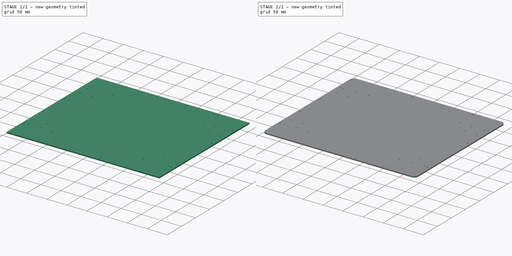
[diagram: build sequence overview — one tinted view per stage of 2, left to right]
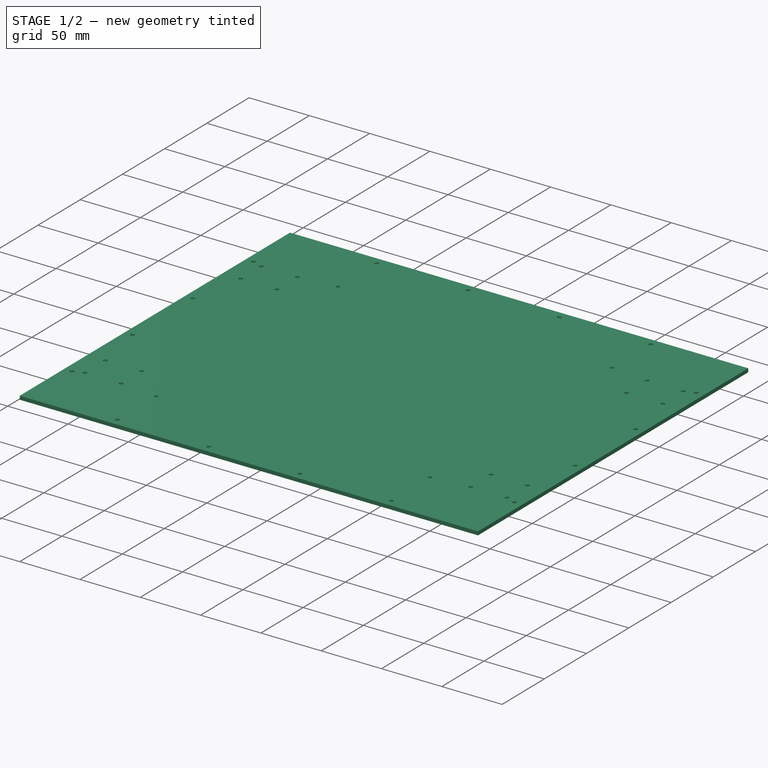
[diagram: stage 1 of 2 — iso view after this stage's code; geometry added in this stage tinted green]
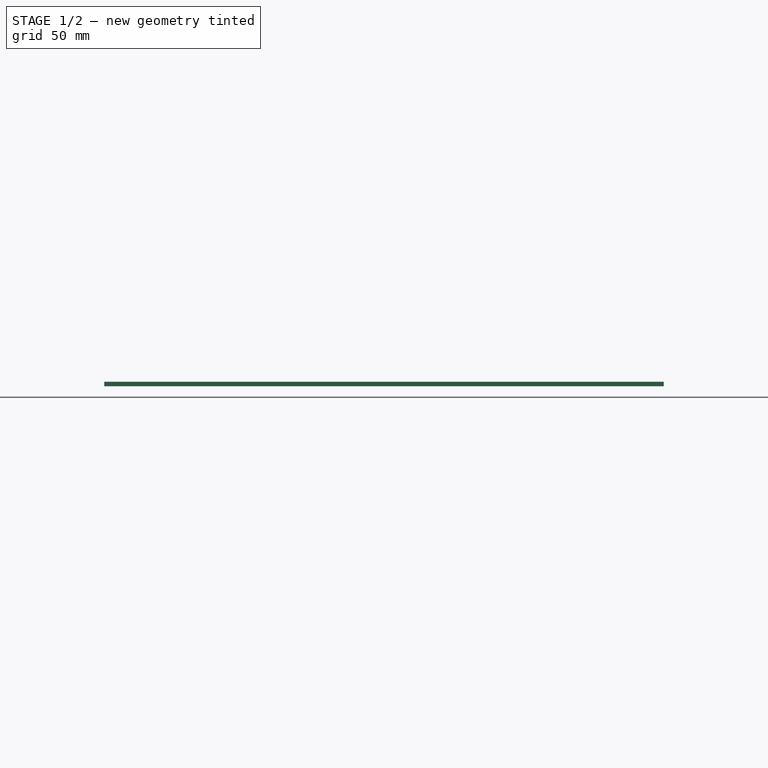
[diagram: stage 1 of 2 — front view after this stage's code; geometry added in this stage tinted green]
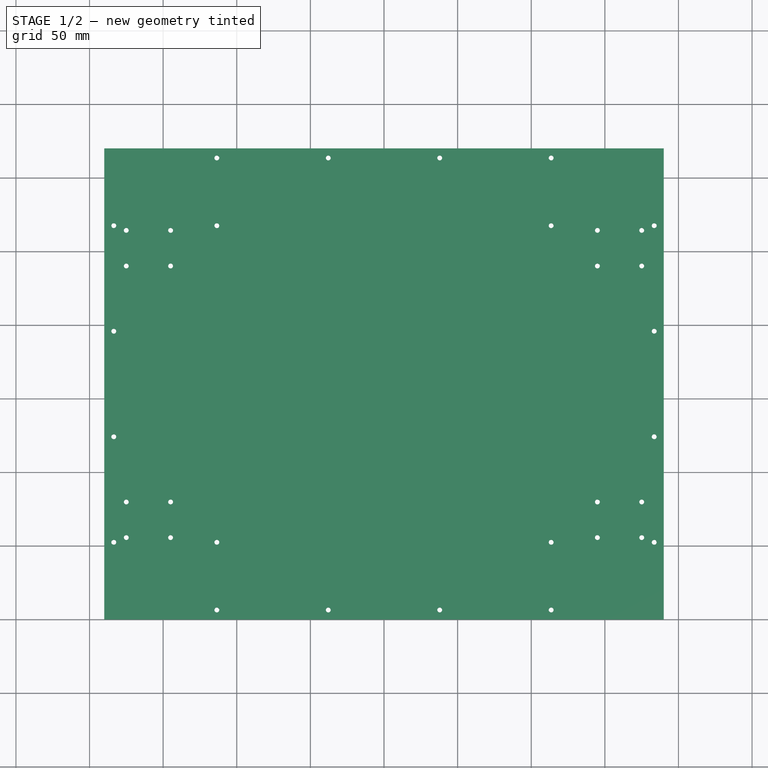
[diagram: stage 1 of 2 — top view after this stage's code; geometry added in this stage tinted green]
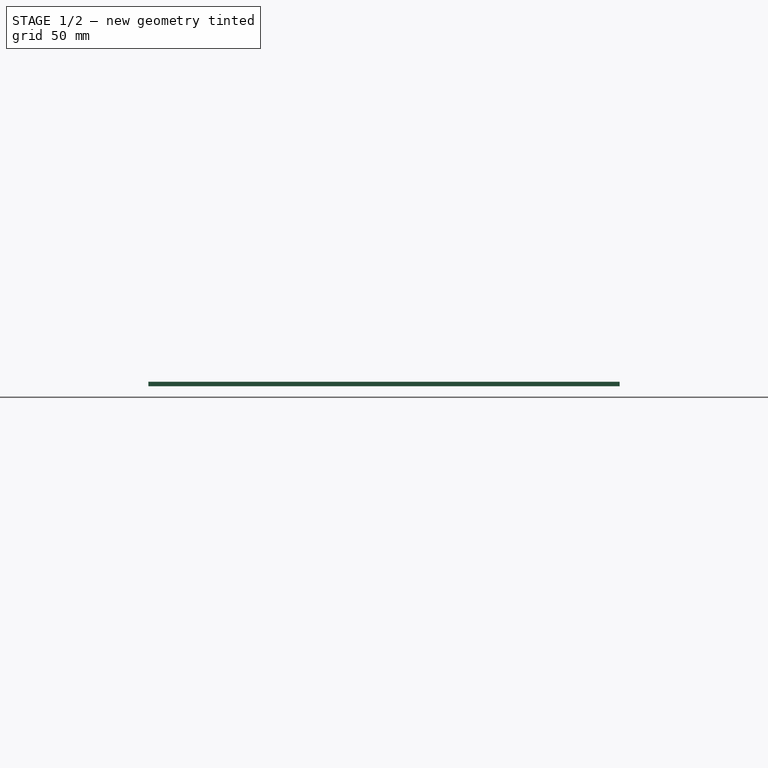
[diagram: stage 1 of 2 — right view after this stage's code; geometry added in this stage tinted green]
FCSTD DOCUMENT  (FreeCAD 1.0R39109 (Git))
Label: base_arriba
License: All rights reserved
LicenseURL: https://en.wikipedia.org/wiki/All_rights_reserved
objects: Sketcher::SketchObject×2, Part::Feature×1, PartDesign::FeatureBase×1, PartDesign::Pad×1, PartDesign::Fillet×1, PartDesign::Body×1
note: 14 computed .brp shape members not serialized (recipe doc carries the construction recipe); baked Part::Feature solids carry a one-line shape summary decoded from their .brp

FEATURE [Part::Feature] Part__Feature  label="base_abajo v9"
  shape: bbox 380 x 320 x 3 mm, 62 faces (baked)
FEATURE [PartDesign::FeatureBase] BaseFeature
  BaseFeature = -> Part__Feature
  Suppressed = false
FEATURE [Sketcher::SketchObject] Sketch
  ArcFitTolerance = 1e-06
  AttachmentSupport = -> [BaseFeature]
  ExternalGeometry = -> [BaseFeature]
  FullyConstrained = false
  MakeInternals = false
  MapMode = 5
  Placement = pos=(0,0,3) rot=(0,0,1;0rad)
  sketch-geometry (28):
    g0: ArcOfCircle CenterX=110 CenterY=310 CenterZ=0 NormalX=0 NormalY=0 NormalZ=1 AngleXU=0 Radius=10 StartAngle=0 EndAngle=1.5708
    g1: ArcOfCircle CenterX=130 CenterY=284 CenterZ=0 NormalX=0 NormalY=0 NormalZ=1 AngleXU=0 Radius=10 StartAngle=3.14159 EndAngle=4.71239
    g2: ArcOfCircle CenterX=180 CenterY=264 CenterZ=0 NormalX=0 NormalY=0 NormalZ=1 AngleXU=0 Radius=10 StartAngle=0 EndAngle=1.5708
    g3: ArcOfCircle CenterX=180 CenterY=56 CenterZ=0 NormalX=0 NormalY=0 NormalZ=1 AngleXU=0 Radius=10 StartAngle=4.71239 EndAngle=6.28319
    g4: ArcOfCircle CenterX=130 CenterY=36 CenterZ=0 NormalX=0 NormalY=0 NormalZ=1 AngleXU=0 Radius=10 StartAngle=1.5708 EndAngle=3.14159
    g5: ArcOfCircle CenterX=110 CenterY=10 CenterZ=0 NormalX=0 NormalY=0 NormalZ=1 AngleXU=0 Radius=10 StartAngle=4.71239 EndAngle=6.28319
    g6: ArcOfCircle CenterX=-110 CenterY=10 CenterZ=0 NormalX=0 NormalY=0 NormalZ=1 AngleXU=0 Radius=10 StartAngle=3.14159 EndAngle=4.71239
    g7: ArcOfCircle CenterX=-130 CenterY=36 CenterZ=0 NormalX=0 NormalY=0 NormalZ=1 AngleXU=0 Radius=10 StartAngle=0 EndAngle=1.5708
    g8: ArcOfCircle CenterX=-180 CenterY=56 CenterZ=0 NormalX=0 NormalY=0 NormalZ=1 AngleXU=0 Radius=10 StartAngle=3.14159 EndAngle=4.71239
    g9: ArcOfCircle CenterX=-180 CenterY=264 CenterZ=0 NormalX=0 NormalY=0 NormalZ=1 AngleXU=0 Radius=10 StartAngle=1.5708 EndAngle=3.14159
    g10: ArcOfCircle CenterX=-130 CenterY=284 CenterZ=0 NormalX=0 NormalY=0 NormalZ=1 AngleXU=0 Radius=10 StartAngle=4.71239 EndAngle=6.28319
    g11: ArcOfCircle CenterX=-110 CenterY=310 CenterZ=0 NormalX=0 NormalY=0 NormalZ=1 AngleXU=0 Radius=10 StartAngle=1.5708 EndAngle=3.14159
    g12: LineSegment StartX=120 StartY=310 StartZ=0 EndX=120 EndY=284 EndZ=0
    g13: LineSegment StartX=180 StartY=274 StartZ=0 EndX=130 EndY=274 EndZ=0
    g14: LineSegment StartX=110 StartY=320 StartZ=0 EndX=190 EndY=318.955 EndZ=0
    g15: LineSegment StartX=190 StartY=264 StartZ=0 EndX=190 EndY=318.955 EndZ=0
    g16: LineSegment StartX=180 StartY=46 StartZ=0 EndX=130 EndY=46 EndZ=0
    g17: LineSegment StartX=120 StartY=36 StartZ=0 EndX=120 EndY=10 EndZ=0
    g18: LineSegment StartX=110 StartY=7.1e-15 StartZ=0 EndX=190 EndY=7.1e-15 EndZ=0
    g19: LineSegment StartX=190 StartY=56 StartZ=0 EndX=190 EndY=7.1e-15 EndZ=0
    g20: LineSegment StartX=-180 StartY=46 StartZ=0 EndX=-130 EndY=46 EndZ=0
    g21: LineSegment StartX=-120 StartY=36 StartZ=0 EndX=-120 EndY=10 EndZ=0
    g22: LineSegment StartX=-110 StartY=1.8e-15 StartZ=0 EndX=-190 EndY=0 EndZ=0
    g23: LineSegment StartX=-190 StartY=56 StartZ=0 EndX=-190 EndY=0 EndZ=0
    g24: LineSegment StartX=-180 StartY=274 StartZ=0 EndX=-130 EndY=274 EndZ=0
    g25: LineSegment StartX=-120 StartY=310 StartZ=0 EndX=-120 EndY=284 EndZ=0
    g26: LineSegment StartX=-110 StartY=320 StartZ=0 EndX=-190 EndY=320 EndZ=0
    g27: LineSegment StartX=-190 StartY=264 StartZ=0 EndX=-190 EndY=320 EndZ=0
  constraints (48):
    c: Coincident(g0,g-9)
    c: Coincident(g0,g-9)
    c: Coincident(g0,g-9)
    c: Coincident(g1,g-10)
    c: Coincident(g1,g-10)
    c: Coincident(g2,g-11)
    c: Coincident(g2,g-11)
    c: Coincident(g2,g-11)
    c: Coincident(g3,g-12)
    c: Coincident(g3,g-12)
    c: Coincident(g4,g-14)
    c: Coincident(g4,g-14)
    c: Coincident(g5,g-16)
    c: Coincident(g5,g-16)
    c: Coincident(g6,g-17)
    c: Coincident(g6,g-17)
    c: Coincident(g8,g-21)
    c: Coincident(g8,g-21)
    c: Coincident(g12,g0)
    c: Coincident(g12,g1)
    c: Coincident(g15,g2)
    c: Vertical(g15)
    c: Coincident(g15,g14)
    c: Coincident(g16,g3)
    c: Coincident(g16,g4)
    c: Horizontal(g16)
    c: Coincident(g17,g4)
    c: Coincident(g17,g5)
    c: Vertical(g17)
    c: Coincident(g18,g5)
    c: Horizontal(g18)
    c: Coincident(g19,g3)
    c: Vertical(g19)
    c: PointOnObject(g19,g18)
    c: Coincident(g21,g7)
    c: Coincident(g21,g6)
    c: Vertical(g21)
    c: Coincident(g22,g6)
    c: Tangent(g23,g8) = -1.5708
    c: Vertical(g23)
    c: Coincident(g23,g22)
    c: Coincident(g25,g11)
    c: Coincident(g25,g10)
    c: Coincident(g26,g11)
    c: Horizontal(g26)
    c: Coincident(g27,g9)
    c: Vertical(g27)
    c: Coincident(g26,g27)
FEATURE [Sketcher::SketchObject] Sketch001
  ArcFitTolerance = 1e-06
  AttachmentSupport = -> [BaseFeature]
  ExternalGeometry = -> [BaseFeature]
  FullyConstrained = false
  MakeInternals = false
  MapMode = 5
  Placement = pos=(0,0,3) rot=(0,0,1;0rad)
  sketch-geometry (44):
    g0: LineSegment StartX=-190 StartY=56 StartZ=0 EndX=-190 EndY=0 EndZ=0
    g1: LineSegment StartX=-110 StartY=0 StartZ=0 EndX=-190 EndY=0 EndZ=0
    g2: LineSegment StartX=-190 StartY=56 StartZ=0 EndX=-176.662 EndY=56 EndZ=0
    g3: LineSegment StartX=-110 StartY=0 StartZ=0 EndX=-110 EndY=56 EndZ=0
    g4: Circle CenterX=-183.536 CenterY=52.4645 CenterZ=0 NormalX=0 NormalY=0 NormalZ=1 AngleXU=0 Radius=1.65
    g5: Circle CenterX=-113.536 CenterY=52.4645 CenterZ=0 NormalX=0 NormalY=0 NormalZ=1 AngleXU=0 Radius=1.65
    g6: Circle CenterX=-113.536 CenterY=6.46447 CenterZ=0 NormalX=0 NormalY=0 NormalZ=1 AngleXU=0 Radius=1.65
    g7: ArcOfCircle CenterX=-175.05 CenterY=55.65 CenterZ=0 NormalX=0 NormalY=0 NormalZ=1 AngleXU=0 Radius=1.65 StartAngle=2.92785 EndAngle=6.49693
    g8: ArcOfCircle CenterX=-144.95 CenterY=55.65 CenterZ=0 NormalX=0 NormalY=0 NormalZ=1 AngleXU=0 Radius=1.65 StartAngle=2.92785 EndAngle=6.49693
    g9: LineSegment StartX=-173.438 StartY=56 StartZ=0 EndX=-146.562 EndY=56 EndZ=0
    g10: LineSegment StartX=-143.338 StartY=56 StartZ=0 EndX=-110 EndY=56 EndZ=0
    g11: LineSegment StartX=110 StartY=0 StartZ=0 EndX=190 EndY=0 EndZ=0
    g12: LineSegment StartX=190 StartY=56 StartZ=0 EndX=190 EndY=0 EndZ=0
    g13: LineSegment StartX=190 StartY=56 StartZ=0 EndX=176.662 EndY=56 EndZ=0
    g14: LineSegment StartX=110 StartY=0 StartZ=0 EndX=110 EndY=56 EndZ=0
    g15: Circle CenterX=113.536 CenterY=6.46447 CenterZ=0 NormalX=0 NormalY=0 NormalZ=1 AngleXU=0 Radius=1.65
    g16: Circle CenterX=113.536 CenterY=52.4645 CenterZ=0 NormalX=0 NormalY=0 NormalZ=1 AngleXU=0 Radius=1.65
    g17: ArcOfCircle CenterX=144.95 CenterY=55.65 CenterZ=0 NormalX=0 NormalY=0 NormalZ=1 AngleXU=0 Radius=1.65 StartAngle=2.92785 EndAngle=6.49693
    g18: ArcOfCircle CenterX=175.05 CenterY=55.65 CenterZ=0 NormalX=0 NormalY=0 NormalZ=1 AngleXU=0 Radius=1.65 StartAngle=2.92785 EndAngle=6.49693
    g19: Circle CenterX=183.536 CenterY=52.4645 CenterZ=0 NormalX=0 NormalY=0 NormalZ=1 AngleXU=0 Radius=1.65
    g20: LineSegment StartX=143.338 StartY=56 StartZ=0 EndX=110 EndY=56 EndZ=0
    g21: LineSegment StartX=173.438 StartY=56 StartZ=0 EndX=146.562 EndY=56 EndZ=0
    g22: LineSegment StartX=110 StartY=320 StartZ=0 EndX=190 EndY=320 EndZ=0
    g23: LineSegment StartX=190 StartY=264 StartZ=0 EndX=190 EndY=320 EndZ=0
    g24: LineSegment StartX=190 StartY=264 StartZ=0 EndX=176.662 EndY=264 EndZ=0
    g25: LineSegment StartX=110 StartY=320 StartZ=0 EndX=110 EndY=264 EndZ=0
    g26: Circle CenterX=113.536 CenterY=313.536 CenterZ=0 NormalX=0 NormalY=0 NormalZ=1 AngleXU=0 Radius=1.65
    g27: Circle CenterX=113.536 CenterY=267.536 CenterZ=0 NormalX=0 NormalY=0 NormalZ=1 AngleXU=0 Radius=1.65
    g28: ArcOfCircle CenterX=144.95 CenterY=264.35 CenterZ=0 NormalX=0 NormalY=0 NormalZ=1 AngleXU=0 Radius=1.65 StartAngle=6.06944 EndAngle=9.63852
    g29: ArcOfCircle CenterX=175.05 CenterY=264.35 CenterZ=0 NormalX=0 NormalY=0 NormalZ=1 AngleXU=0 Radius=1.65 StartAngle=6.06944 EndAngle=9.63852
    g30: Circle CenterX=183.536 CenterY=267.536 CenterZ=0 NormalX=0 NormalY=0 NormalZ=1 AngleXU=0 Radius=1.65
    g31: LineSegment StartX=143.338 StartY=264 StartZ=0 EndX=110 EndY=264 EndZ=0
    g32: LineSegment StartX=173.438 StartY=264 StartZ=0 EndX=146.562 EndY=264 EndZ=0
    g33: LineSegment StartX=-110 StartY=320 StartZ=0 EndX=-190 EndY=320 EndZ=0
    g34: LineSegment StartX=-190 StartY=264 StartZ=0 EndX=-190 EndY=320 EndZ=0
    g35: LineSegment StartX=-190 StartY=264 StartZ=0 EndX=-176.662 EndY=264 EndZ=0
    g36: LineSegment StartX=-110 StartY=320 StartZ=0 EndX=-110 EndY=264 EndZ=0
    g37: Circle CenterX=-183.536 CenterY=267.536 CenterZ=0 NormalX=0 NormalY=0 NormalZ=1 AngleXU=0 Radius=1.65
    g38: Circle CenterX=-113.536 CenterY=267.536 CenterZ=0 NormalX=0 NormalY=0 NormalZ=1 AngleXU=0 Radius=1.65
    g39: Circle CenterX=-113.536 CenterY=313.536 CenterZ=0 NormalX=0 NormalY=0 NormalZ=1 AngleXU=0 Radius=1.65
    g40: ArcOfCircle CenterX=-175.05 CenterY=264.35 CenterZ=0 NormalX=0 NormalY=0 NormalZ=1 AngleXU=0 Radius=1.65 StartAngle=6.06944 EndAngle=9.63852
    g41: ArcOfCircle CenterX=-144.95 CenterY=264.35 CenterZ=0 NormalX=0 NormalY=0 NormalZ=1 AngleXU=0 Radius=1.65 StartAngle=6.06944 EndAngle=9.63852
    g42: LineSegment StartX=-173.438 StartY=264 StartZ=0 EndX=-146.562 EndY=264 EndZ=0
    g43: LineSegment StartX=-143.338 StartY=264 StartZ=0 EndX=-110 EndY=264 EndZ=0
  constraints (104):
    c: Coincident(g0,g-3)
    c: Vertical(g0)
    c: Coincident(g1,g-4)
    c: Coincident(g2,g0)
    c: Horizontal(g2)
    c: Coincident(g3,g1)
    c: Vertical(g3)
    c: Coincident(g3,g10)
    c: Coincident(g1,g0)
    c: Coincident(g4,g-5)
    c: Equal(g4,g-5)
    c: Coincident(g5,g-6)
    c: Equal(g5,g-6)
    c: Coincident(g6,g-7)
    c: Equal(g6,g-7)
    c: Coincident(g7,g-8)
    c: Equal(g7,g-8)
    c: Coincident(g8,g-9)
    c: Equal(g8,g-9)
    c: PointOnObject(g7,g9)
    c: Coincident(g2,g7)
    c: PointOnObject(g9,g7)
    c: PointOnObject(g8,g10)
    c: Coincident(g9,g8)
    c: PointOnObject(g10,g8)
    c: Coincident(g11,g-4)
    c: Coincident(g12,g-10)
    c: Vertical(g12)
    c: Coincident(g13,g12)
    c: Horizontal(g13)
    c: Coincident(g14,g11)
    c: Vertical(g14)
    c: Coincident(g14,g20)
    c: Coincident(g11,g12)
    c: Coincident(g15,g-15)
    c: Equal(g15,g-15)
    c: Coincident(g16,g-16)
    c: Equal(g16,g-16)
    c: Coincident(g17,g-13)
    c: Equal(g17,g-13)
    c: Coincident(g18,g-12)
    c: Equal(g18,g-12)
    c: Coincident(g19,g-11)
    c: Equal(g19,g-11)
    c: PointOnObject(g17,g20)
    c: Coincident(g21,g17)
    c: PointOnObject(g20,g17)
    c: PointOnObject(g18,g21)
    c: Coincident(g13,g18)
    c: PointOnObject(g21,g18)
    c: Coincident(g22,g-17)
    c: Horizontal(g22)
    c: Coincident(g23,g-10)
    c: Vertical(g23)
    c: Coincident(g24,g23)
    c: Horizontal(g24)
    c: Coincident(g25,g22)
    c: Vertical(g25)
    c: Coincident(g23,g22)
    c: Coincident(g25,g31)
    c: Coincident(g26,g-18)
    c: Equal(g26,g-18)
    c: Coincident(g27,g-19)
    c: Equal(g27,g-19)
    c: Coincident(g28,g-20)
    c: Equal(g28,g-20)
    c: Coincident(g29,g-21)
    c: Equal(g29,g-21)
    c: Coincident(g30,g-22)
    c: Equal(g30,g-22)
    c: PointOnObject(g28,g31)
    c: PointOnObject(g28,g32)
    c: PointOnObject(g32,g-20)
    c: PointOnObject(g31,g-20)
    c: PointOnObject(g29,g32)
    c: PointOnObject(g29,g24)
    c: PointOnObject(g24,g-21)
    c: PointOnObject(g32,g-21)
    c: Coincident(g33,g-17)
    c: Horizontal(g33)
    c: Coincident(g34,g-3)
    c: Vertical(g34)
    c: Coincident(g35,g34)
    c: Horizontal(g35)
    c: Coincident(g36,g33)
    c: Vertical(g36)
    c: Coincident(g34,g33)
    c: Coincident(g36,g43)
    c: Coincident(g37,g-23)
    c: Equal(g37,g-23)
    c: Coincident(g38,g-26)
    c: Equal(g38,g-26)
    c: Coincident(g39,g-27)
    c: Equal(g39,g-27)
    c: Coincident(g40,g-24)
    c: Equal(g40,g-24)
    c: Coincident(g41,g-25)
    c: PointOnObject(g40,g35)
    c: PointOnObject(g40,g42)
    c: PointOnObject(g35,g-24)
    c: PointOnObject(g42,g-24)
    c: PointOnObject(g42,g-25)
    c: Coincident(g41,g42)
    c: Coincident(g41,g43)
FEATURE [PartDesign::Pad] Pad
  BaseFeature = -> BaseFeature
  Direction = (0,0,1)
  Length = 3
  Length2 = 10
  Profile = -> Sketch001
  ReferenceAxis = -> Sketch001 [N_Axis]
  Refine = true
  Reversed = true
  Suppressed = false
  Type = 0
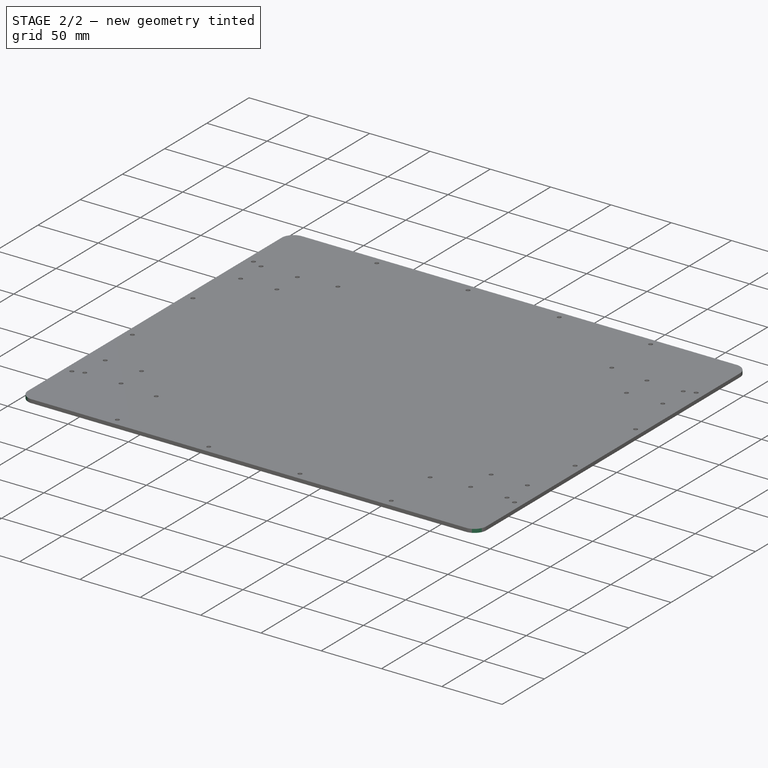
[diagram: stage 2 of 2 — iso view after this stage's code; geometry added in this stage tinted green]
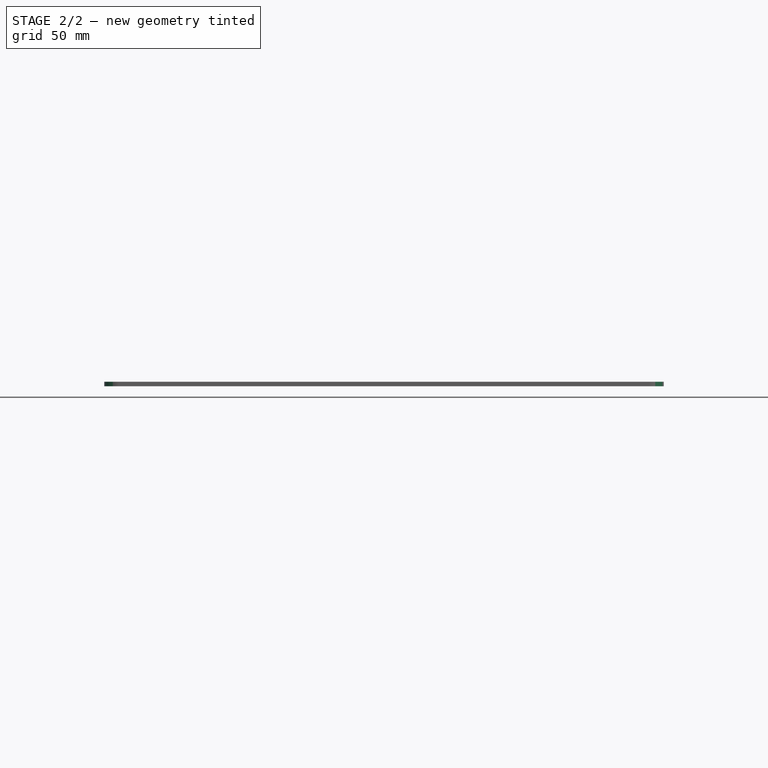
[diagram: stage 2 of 2 — front view after this stage's code; geometry added in this stage tinted green]
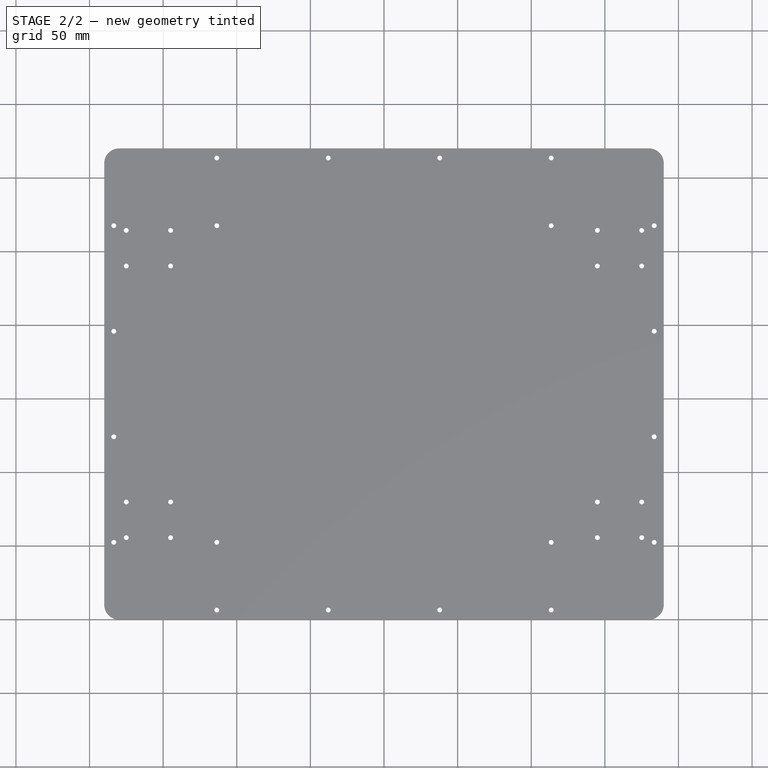
[diagram: stage 2 of 2 — top view after this stage's code; geometry added in this stage tinted green]
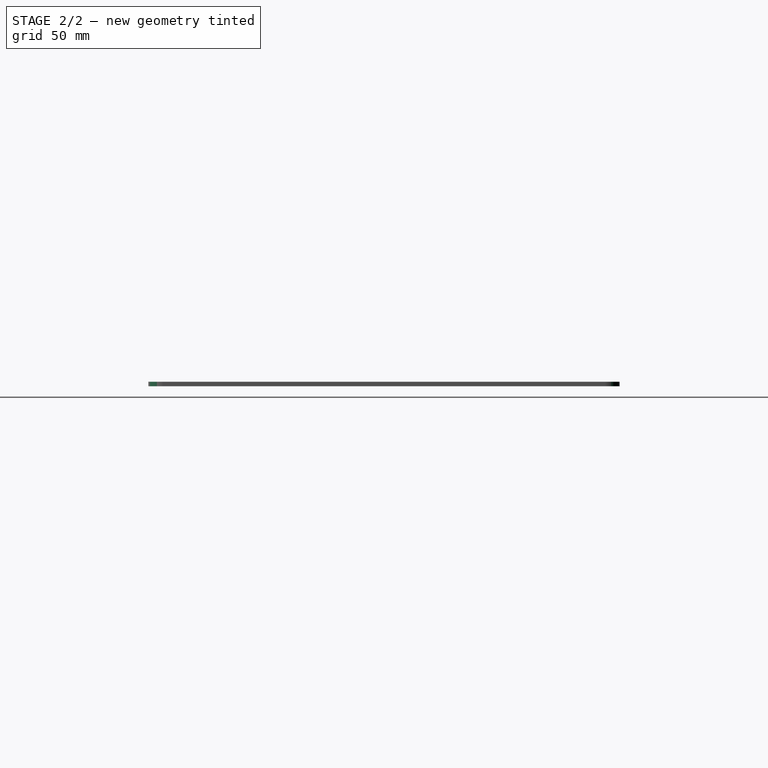
[diagram: stage 2 of 2 — right view after this stage's code; geometry added in this stage tinted green]
FEATURE [PartDesign::Fillet] Fillet
  Base = -> Pad [Edge144,Edge143,Edge141,Edge142]
  BaseFeature = -> Pad
  Radius = 10
  Refine = true
  SupportTransform = false
  Suppressed = false
  UseAllEdges = false
FEATURE [PartDesign::Body] Body
  AllowCompound = false
  BaseFeature = -> Part__Feature
  Group = -> [BaseFeature,Sketch,Sketch001,Pad,Fillet]
  Origin = -> Origin
  Tip = -> Fillet
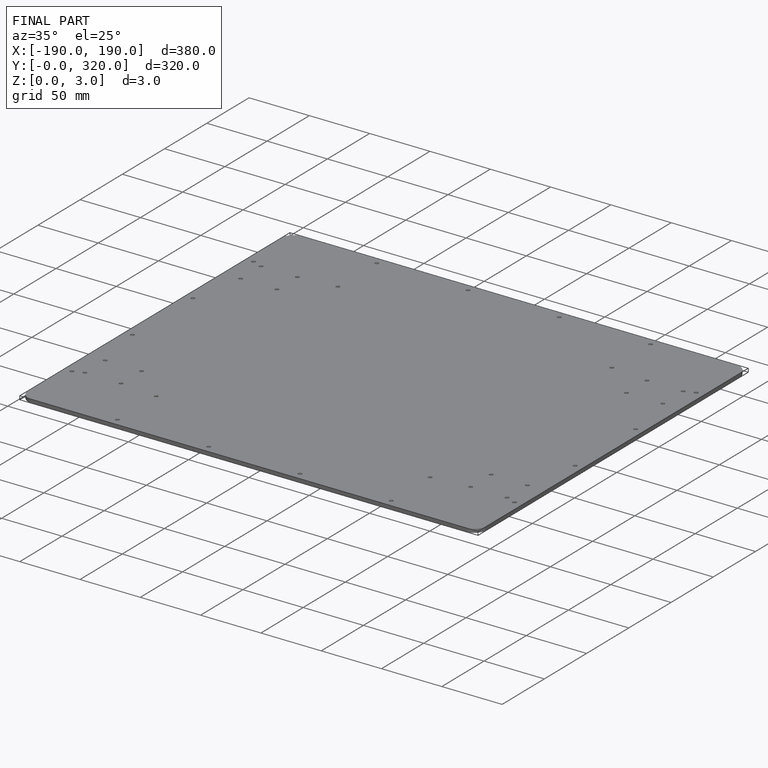
[diagram: finished part — iso view with bounding-box wireframe]
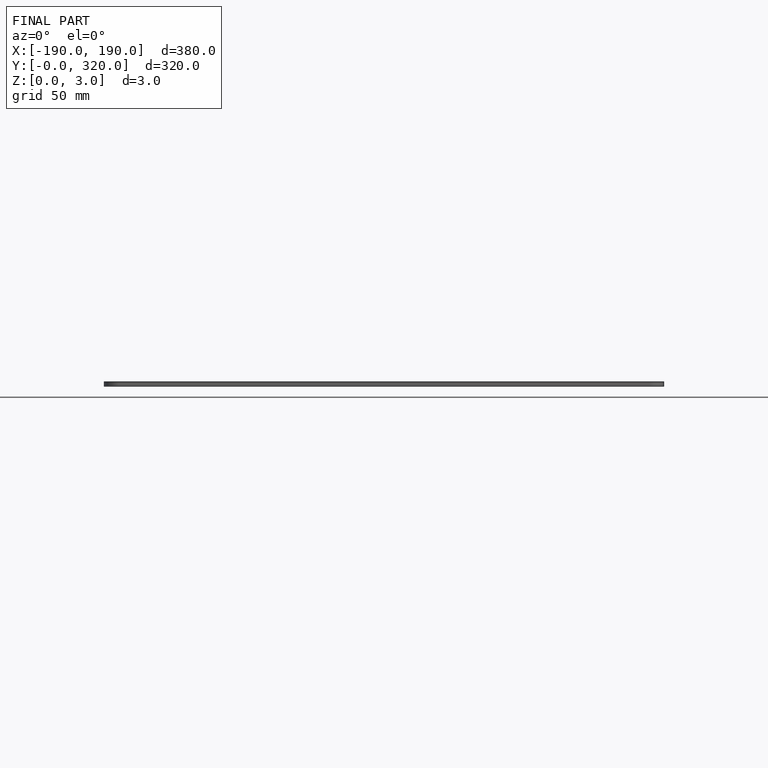
[diagram: finished part — front view with bounding-box wireframe]
